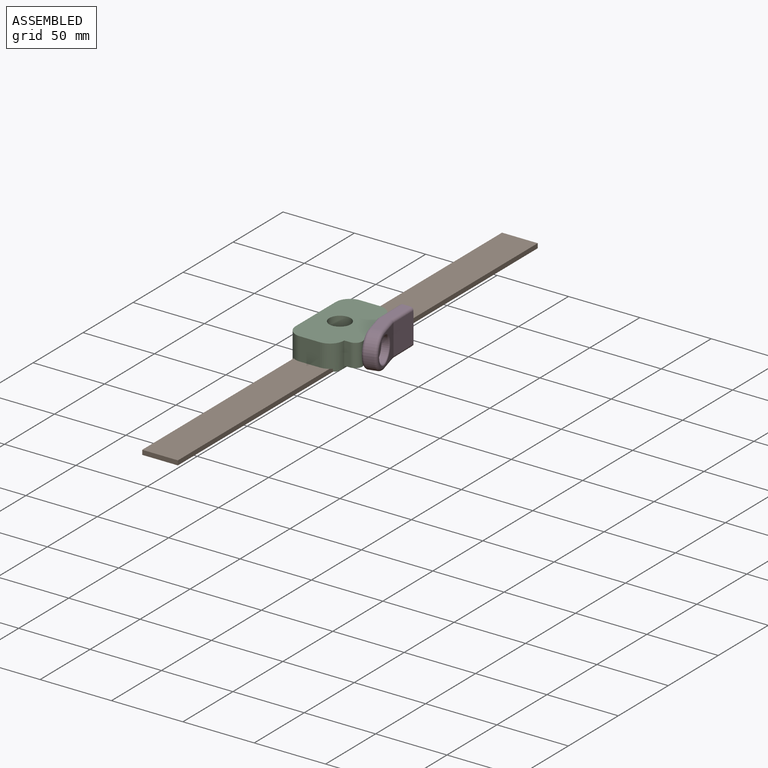
[diagram: assembled view]
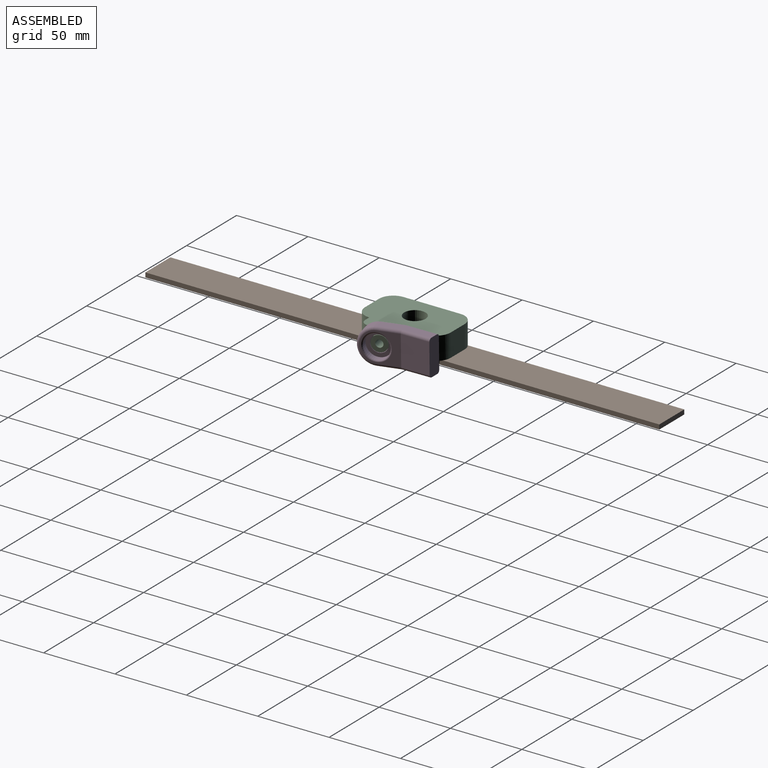
[diagram: assembled view, second angle]
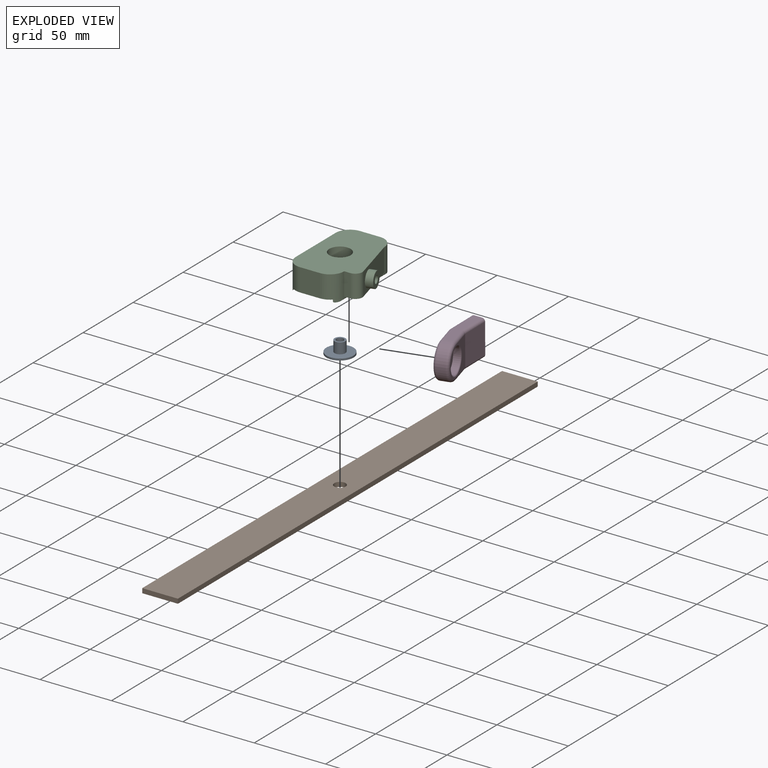
[diagram: exploded view]
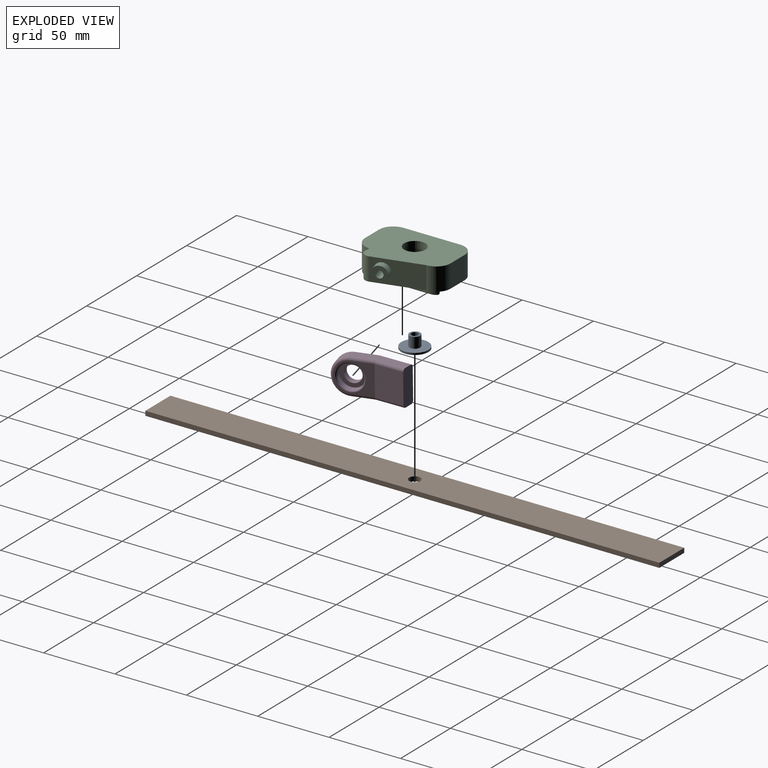
[diagram: exploded view, second angle]
ASSEMBLY  parts=4 mates=3
PART A: 6 faces, bbox 19x19x8.8 mm
  f0: cylinder r=9.5mm len=19mm, axis (0,0,1), area 77.6mm2, adj f1,f2
  f1: plane 19x19mm, normal (0,0,-1), area 263.1mm2, adj f0,f5
  f2: plane 19x19mm, normal (0,0,1), area 238.2mm2, adj f0,f3
  f3: cylinder r=3.8mm len=7.6mm, axis (0,0,-1), area 179.1mm2, adj f2,f4
  f4: plane 7.6x7.6mm, normal (0,0,1), area 24.9mm2, adj f3,f5
  f5: cylinder r=2.55mm len=8.8mm, axis (0,0,1), area 141.1mm2, adj f1,f4
PART B: 7 faces, bbox 25x360x3.2 mm
  f0: plane 25x3.2mm, normal (0,-1,0), area 80mm2, adj f1,f3,f4,f5
  f1: plane 360x3.2mm, normal (1,0,0), area 1152mm2, adj f0,f2,f4,f5
  f2: plane 25x3.2mm, normal (0,1,0), area 80mm2, adj f1,f3,f4,f5
  f3: plane 360x3.2mm, normal (-1,0,0), area 1152mm2, adj f0,f2,f4,f5
  f4: plane 360x25mm, normal (0,0,1), area 8949.7mm2, adj f0,f1,f2,f3,f6
  f5: plane 360x25mm, normal (0,0,-1), area 8949.7mm2, adj f0,f1,f2,f3,f6
  f6: cylinder r=4mm len=8mm, axis (0,0,1), area 80.4mm2, adj f4,f5
PART C: 29 faces, bbox 47.2x60x18 mm
  f0: plane 40x1mm, normal (1,0,0), area 40mm2, adj f12,f19,f20,f23
  f1: plane 15x15mm, normal (0,0,1), area 126.4mm2, adj f6,f15
  f2: plane 60x28mm, normal (0,0,-1), area 1604.8mm2, adj f3,f4,f6,f7,f9,f17,f18,f19
  f3: plane 16x14mm, normal (0,-1,0), area 224mm2, adj f2,f16,f18,f19
  f4: plane 16x14mm, normal (0,1,0), area 224mm2, adj f2,f16,f17,f20
  f5: plane 40x17mm, normal (-1,0,0), area 680mm2, adj f13,f16,f17,f18
  f6: cylinder r=4mm len=8mm, axis (0,0,1), area 150.8mm2, adj f1,f2
  f7: plane 54.28x1mm, normal (1,0,0), area 54.3mm2, adj f2,f14,f17,f18
  f8: plane 52x1mm, normal (0,0,-1), area 50.5mm2, adj f13,f14,f17,f18
  f9: plane 54.28x1mm, normal (-1,0,0), area 54.3mm2, adj f2,f11,f19,f20
  f10: plane 52x1mm, normal (0,0,-1), area 50.5mm2, adj f11,f12,f19,f20
  f11: cylinder r=1mm len=54.28mm, axis (0,-1,0), area 84mm2, adj f9,f10,f19,f20
  f12: cylinder r=1mm len=48.72mm, axis (0,-1,0), area 69.7mm2, adj f0,f10,f19,f20
  f13: cylinder r=1mm len=48.72mm, axis (0,1,0), area 69.7mm2, adj f5,f8,f17,f18
  f14: cylinder r=1mm len=54.28mm, axis (0,1,0), area 84mm2, adj f7,f8,f17,f18
  f15: cylinder r=7.5mm len=15mm, axis (0,0,-1), area 471.2mm2, adj f1,f16
  f16: plane 60x43.2mm, normal (0,0,1), area 1982.1mm2, adj f3,f4,f5,f15,f17,f18,f19,f20
  f17: cylinder r=10mm len=18mm, axis (0,0,1), area 265.2mm2, adj f2,f4,f5,f7,f8,f13,f14,f16
  f18: cylinder r=10mm len=18mm, axis (0,0,-1), area 265.2mm2, adj f2,f3,f5,f7,f8,f13,f14,f16
  f19: cylinder r=10mm len=18mm, axis (0,0,1), area 265.2mm2, adj f0,f2,f3,f9,f10,f11,f12,f16
  f20: cylinder r=10mm len=18mm, axis (0,0,-1), area 265.2mm2, adj f0,f2,f4,f9,f10,f11,f12,f16
  f21: plane 33.71x16mm, normal (0.97,0.26,0), area 463.3mm2, adj f16,f20,f23,f24,f25
  f22: plane 16x4.2mm, normal (0,-1,0), area 67.2mm2, adj f16,f19,f23,f24
  f23: plane 40x9.2mm, normal (0,0,-1), area 204.7mm2, adj f0,f21,f22,f24
  f24: cylinder r=5mm len=16mm, axis (0,0,1), area 146.6mm2, adj f16,f21,f22,f23
  f25: cylinder r=5.5mm len=11.92mm, axis (-0.97,-0.26,0), area 172.8mm2, adj f21,f26
  f26: plane 11x10.63mm, normal (0.97,0.26,0), area 74.6mm2, adj f25,f28
  f27: plane 5.1x4.93mm, normal (0.97,0.26,0), area 20.4mm2, adj f28
  f28: cylinder r=2.55mm len=20.64mm, axis (0.97,0.26,0), area 320.4mm2, adj f26,f27
PART D: 22 faces, bbox 26.4x49.1x27.1 mm
  f0: cylinder r=12.5mm len=25mm, axis (-0.97,-0.26,0), area 231.7mm2, adj f6,f7,f14,f19
  f1: plane 17x16.42mm, normal (0.97,0.26,0), area 123.1mm2, adj f2,f4
  f2: cylinder r=5.75mm len=12.38mm, axis (-0.97,-0.26,0), area 177mm2, adj f1,f3
  f3: plane 24.63x21mm, normal (-0.97,-0.26,0), area 384.3mm2, adj f2,f9,f17,f19,f20
  f4: cylinder r=8.5mm len=17.46mm, axis (-0.97,-0.26,0), area 213.6mm2, adj f1,f21
  f5: plane 24.63x21mm, normal (0.97,0.26,0), area 204.7mm2, adj f8,f12,f14,f15,f21
  f6: plane 35.07x19.78mm, normal (0,0,-1), area 206.9mm2, adj f0,f10,f13,f15,f18,f20
  f7: plane 35.07x19.78mm, normal (0,0,1), area 206.9mm2, adj f0,f10,f11,f12,f16,f17
  f8: plane 21x17.32mm, normal (0.87,0.5,0), area 420mm2, adj f5,f10,f11,f13
  f9: plane 21x19.54mm, normal (-0.87,-0.5,0), area 473.8mm2, adj f3,f10,f16,f18
  f10: plane 25x8.28mm, normal (0.5,-0.87,0), area 235.6mm2, adj f6,f7,f8,f9,f11,f13,f16,f18
  f11: cylinder r=2mm len=18.55mm, axis (0.5,-0.87,0), area 63.1mm2, adj f7,f8,f10,f12
  f12: cylinder r=2mm len=15.26mm, axis (0.26,-0.97,0), area 47.4mm2, adj f5,f7,f11,f14
  f13: cylinder r=2mm len=18.55mm, axis (-0.5,0.87,0), area 63.1mm2, adj f6,f8,f10,f15
  f14: torus R=10.5mm, axis (0.97,0.26,0), area 116.2mm2, adj f0,f5,f12,f15
  f15: cylinder r=2mm len=15.26mm, axis (-0.26,0.97,0), area 47.4mm2, adj f5,f6,f13,f14
  f16: cylinder r=2mm len=20.54mm, axis (-0.5,0.87,0), area 70.6mm2, adj f7,f9,f10,f17
  f17: cylinder r=2mm len=15.01mm, axis (-0.26,0.97,0), area 46.8mm2, adj f3,f7,f16,f19
  f18: cylinder r=2mm len=20.54mm, axis (0.5,-0.87,0), area 70.6mm2, adj f6,f9,f10,f20
  f19: torus R=10.5mm, axis (0.97,0.26,0), area 116.2mm2, adj f0,f3,f17,f20
  f20: cylinder r=2mm len=15.01mm, axis (0.26,-0.97,0), area 46.8mm2, adj f3,f6,f18,f19
  f21: torus R=9.5mm, axis (0.97,0.26,0), area 87.5mm2, adj f4,f5
PLACE A at identity
PLACE B at identity fixed
PLACE C at identity
PLACE D rot(axis=(-0.97,-0.26,0),179.4deg) t=(6.33,-23.22,22.27)mm
MATE fastened B.f6 <-> A.f0  axis (0,0,-1) through (0,0,0)mm
MATE fastened C.f6 <-> B.f6  axis (0,0,-1) through (0,0,3.2)mm
MATE revolute D.f0 <-> C.f28  axis (0.97,0.26,0) through (28.79,-4.68,11.2)mm
